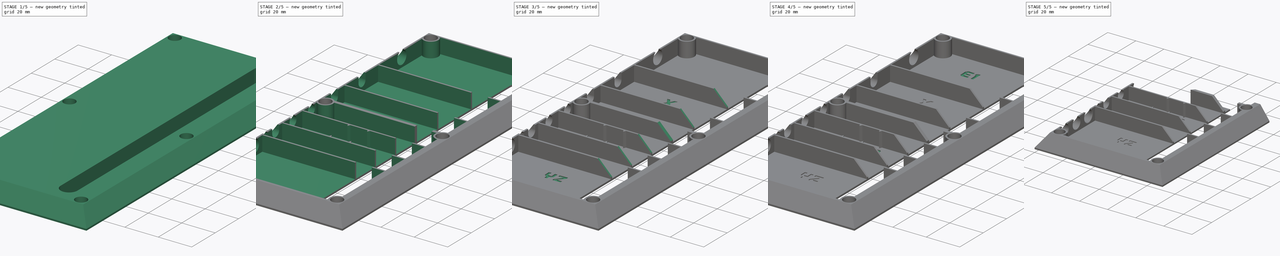
[diagram: build sequence overview — one tinted view per stage of 5, left to right]
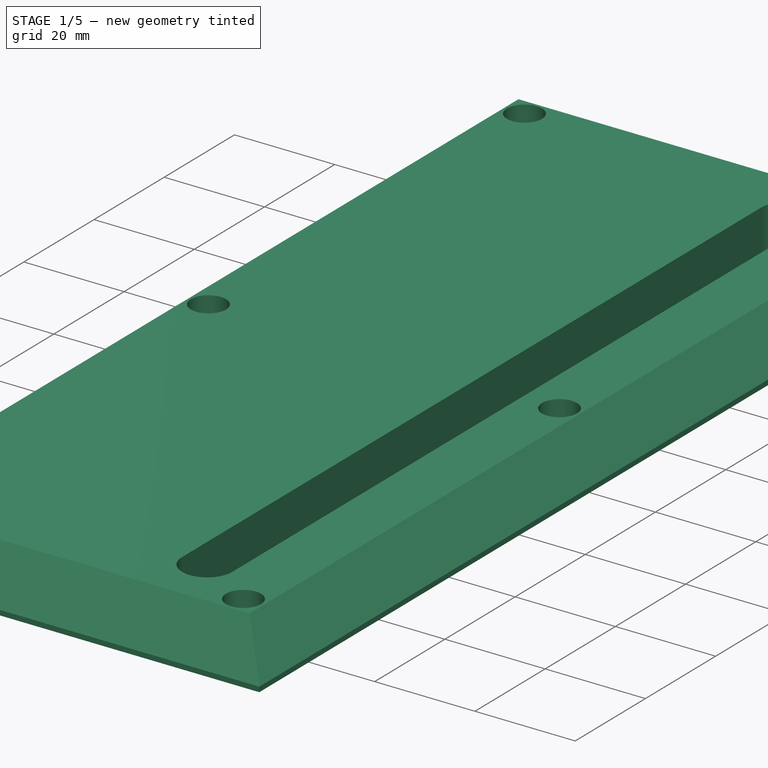
[diagram: stage 1 of 5 — iso view after this stage's code; geometry added in this stage tinted green]
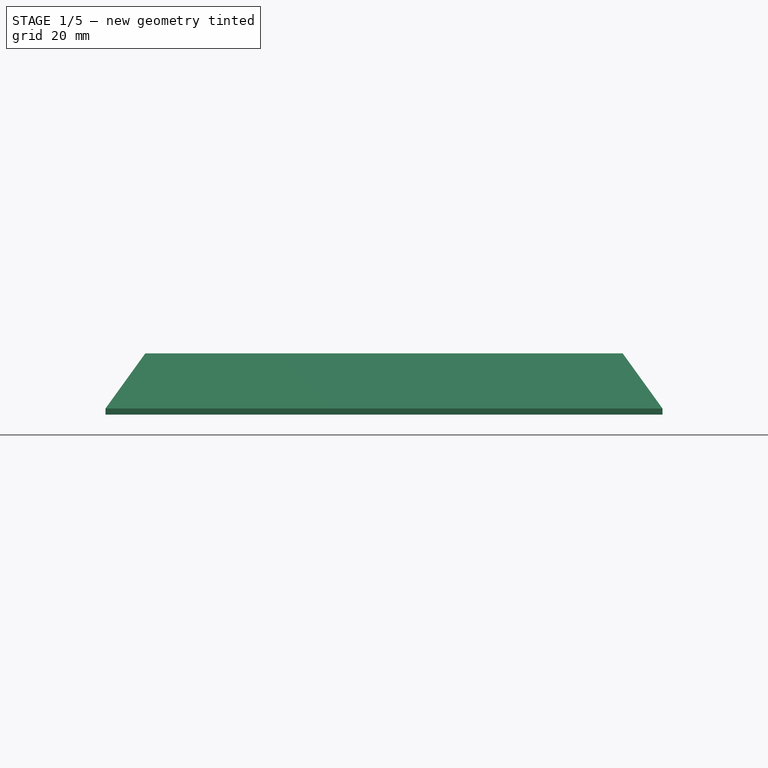
[diagram: stage 1 of 5 — front view after this stage's code; geometry added in this stage tinted green]
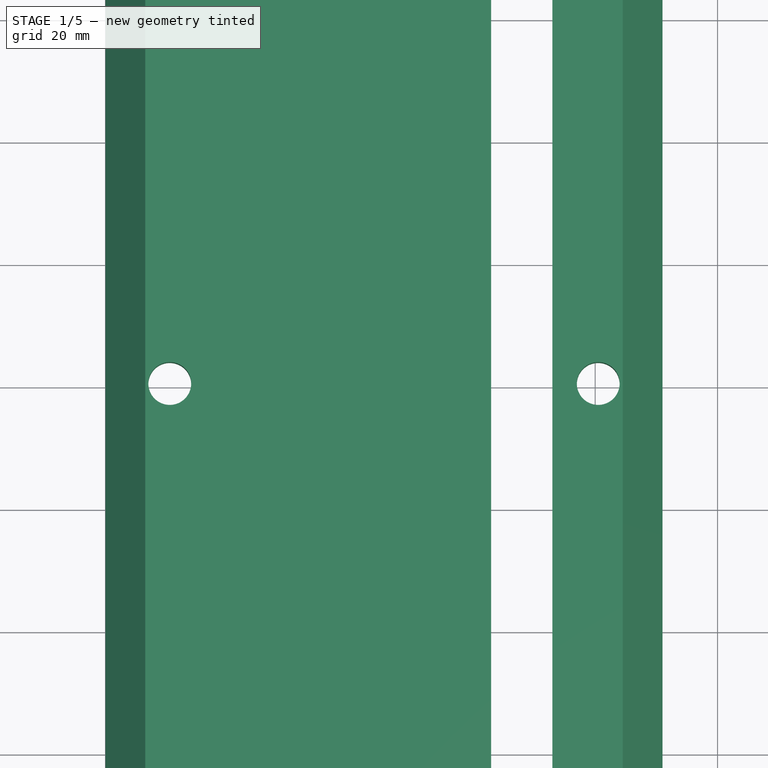
[diagram: stage 1 of 5 — top view after this stage's code; geometry added in this stage tinted green]
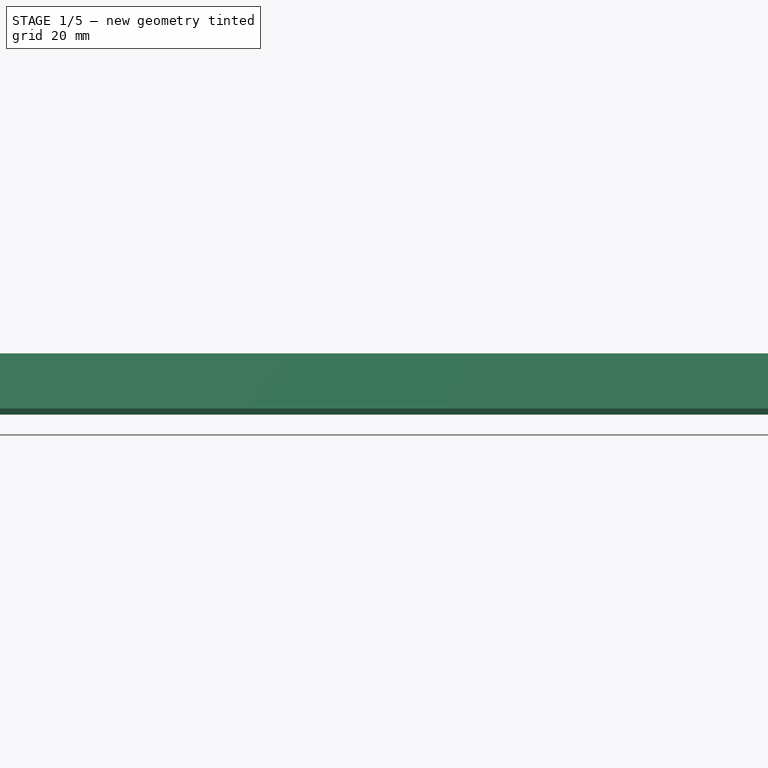
[diagram: stage 1 of 5 — right view after this stage's code; geometry added in this stage tinted green]
FCSTD DOCUMENT  (FreeCAD 0.17R13528 (Git))
Label: interconnect_housing_bottom_v0.1
License: CreativeCommons Attribution-ShareAlike
LicenseURL: http://creativecommons.org/licenses/by-sa/4.0/
objects: PartDesign::Pocket×12, Sketcher::SketchObject×9, Part::Part2DObjectPython×5, PartDesign::Pad×2, PartDesign::Fillet×1, PartDesign::Body×1
note: 44 computed .brp shape members not serialized (recipe doc carries the construction recipe); baked Part::Feature solids carry a one-line shape summary decoded from their .brp

FEATURE [Sketcher::SketchObject] Sketch
  MapMode = 5
  Support = -> [XY_Plane]
  sketch-geometry (21):
    g0: LineSegment StartX=0 StartY=201 StartZ=0 EndX=91 EndY=201 EndZ=0
    g1: LineSegment StartX=91 StartY=201 StartZ=0 EndX=91 EndY=0 EndZ=0
    g2: LineSegment StartX=91 StartY=0 StartZ=0 EndX=0 EndY=0 EndZ=0
    g3: LineSegment StartX=0 StartY=0 StartZ=0 EndX=0 EndY=201 EndZ=0
    g4: LineSegment [constr] StartX=63 StartY=18 StartZ=0 EndX=73 EndY=18 EndZ=0
    g5: LineSegment StartX=73 StartY=18 StartZ=0 EndX=73 EndY=183 EndZ=0
    g6: LineSegment [constr] StartX=73 StartY=183 StartZ=0 EndX=63 EndY=183 EndZ=0
    g7: LineSegment StartX=63 StartY=183 StartZ=0 EndX=63 EndY=18 EndZ=0
    g8: LineSegment [constr] StartX=10.5 StartY=190.5 StartZ=0 EndX=80.5 EndY=190.5 EndZ=0
    g9: LineSegment [constr] StartX=80.5 StartY=190.5 StartZ=0 EndX=80.5 EndY=10.5 EndZ=0
    g10: LineSegment [constr] StartX=80.5 StartY=10.5 StartZ=0 EndX=10.5 EndY=10.5 EndZ=0
    g11: LineSegment [constr] StartX=10.5 StartY=10.5 StartZ=0 EndX=10.5 EndY=190.5 EndZ=0
    g12: LineSegment [constr] StartX=10.5 StartY=100.5 StartZ=0 EndX=80.5 EndY=100.5 EndZ=0
    g13: ArcOfCircle CenterX=68 CenterY=183 CenterZ=0 NormalX=0 NormalY=0 NormalZ=1 AngleXU=0 Radius=5 StartAngle=-4e-12 EndAngle=3.14159
    g14: ArcOfCircle CenterX=68 CenterY=18 CenterZ=0 NormalX=0 NormalY=0 NormalZ=1 AngleXU=0 Radius=5 StartAngle=3.14159 EndAngle=6.28319
    g15: Circle CenterX=80.5 CenterY=10.5 CenterZ=0 NormalX=0 NormalY=0 NormalZ=1 AngleXU=0 Radius=3.5
    g16: Circle CenterX=10.5 CenterY=10.5 CenterZ=0 NormalX=0 NormalY=0 NormalZ=1 AngleXU=0 Radius=3.5
    g17: Circle CenterX=80.5 CenterY=100.5 CenterZ=0 NormalX=0 NormalY=0 NormalZ=1 AngleXU=0 Radius=3.5
    g18: Circle CenterX=10.5 CenterY=100.5 CenterZ=0 NormalX=0 NormalY=0 NormalZ=1 AngleXU=0 Radius=3.5
    g19: Circle CenterX=80.5 CenterY=190.5 CenterZ=0 NormalX=0 NormalY=0 NormalZ=1 AngleXU=0 Radius=3.5
    g20: Circle CenterX=10.5 CenterY=190.5 CenterZ=0 NormalX=0 NormalY=0 NormalZ=1 AngleXU=0 Radius=3.5
  constraints (53):
    c: Coincident(g0,g1)
    c: Coincident(g1,g2)
    c: Coincident(g2,g3)
    c: Coincident(g3,g0)
    c: Horizontal(g0)
    c: Horizontal(g2)
    c: Vertical(g1)
    c: Vertical(g3)
    c: Coincident(g2,g-1)
    c: DistanceX(g2,g2) = 91
    c: DistanceY(g1,g1) = 201
    c: Coincident(g4,g5)
    c: Coincident(g5,g6)
    c: Coincident(g6,g7)
    c: Coincident(g7,g4)
    c: Horizontal(g4)
    c: Horizontal(g6)
    c: Vertical(g5)
    c: Vertical(g7)
    c: Coincident(g8,g9)
    c: Coincident(g9,g10)
    c: Coincident(g10,g11)
    c: Coincident(g11,g8)
    c: Horizontal(g8)
    c: Horizontal(g10)
    c: Vertical(g9)
    c: Vertical(g11)
    c: DistanceX(g10) = 10.5
    c: DistanceY(g10) = 10.5
    c: DistanceX(g10,g10) = 70
    c: DistanceY(g9,g9) = 180
    c: PointOnObject(g12,g9)
    c: PointOnObject(g12,g11)
    c: Horizontal(g12)
    c: DistanceY(g12,g8) = 90
    c: DistanceX(g4) = 73
    c: DistanceY(g4) = 18
    c: DistanceX(g4,g4) = 10
    c: DistanceY(g5,g5) = 165
    c: Coincident(g4,g14)
    c: Coincident(g4,g14)
    c: PointOnObject(g14,g4)
    c: Coincident(g6,g13)
    c: Coincident(g5,g13)
    c: PointOnObject(g13,g6)
    c: Coincident(g8,g20)
    c: Coincident(g8,g19)
    c: Coincident(g12,g17)
    c: Coincident(g12,g18)
    c: Coincident(g10,g16)
    c: Coincident(g9,g15)
    c: Radius(g15) = 3.5
    c: Equal(g15, g16-g20) x5
FEATURE [PartDesign::Pad] Pad
  Length = 10
  Length2 = 100
  Profile = -> Sketch
  Type = 0
FEATURE [Sketcher::SketchObject] Sketch001
  MapMode = 5
  Placement = pos=(0,0,0) rot=(1,0,0;1.5708rad)
  Support = -> [Pad]
  sketch-geometry (6):
    g0: LineSegment StartX=84.5 StartY=10 StartZ=0 EndX=91 EndY=1 EndZ=0
    g1: LineSegment StartX=91 StartY=1 StartZ=0 EndX=91 EndY=10 EndZ=0
    g2: LineSegment StartX=91 StartY=10 StartZ=0 EndX=84.5 EndY=10 EndZ=0
    g3: LineSegment StartX=0 StartY=1 StartZ=0 EndX=6.5 EndY=10 EndZ=0
    g4: LineSegment StartX=6.5 StartY=10 StartZ=0 EndX=0 EndY=10 EndZ=0
    g5: LineSegment StartX=0 StartY=10 StartZ=0 EndX=0 EndY=1 EndZ=0
  constraints (18):
    c: Coincident(g0,g1)
    c: Coincident(g1,g2)
    c: Coincident(g2,g0)
    c: Coincident(g3,g4)
    c: Coincident(g4,g5)
    c: Coincident(g5,g3)
    c: Vertical(g5)
    c: Vertical(g1)
    c: Horizontal(g2)
    c: Horizontal(g4)
    c: PointOnObject(g4,g-2)
    c: DistanceY(g3) = 1
    c: Distance(g5) = 9
    c: DistanceX(g4,g4) = 6.5
    c: DistanceX(g0) = 91
    c: DistanceY(g0) = 1
    c: Equal(g1,g5)
    c: Equal(g4,g2)
FEATURE [Sketcher::SketchObject] Sketch002
  MapMode = 5
  Placement = pos=(91,0,0) rot=(0.57735,0.57735,0.57735;2.0944rad)
  Support = -> [Pad]
  sketch-geometry (6):
    g0: LineSegment StartX=0 StartY=1 StartZ=0 EndX=6.5 EndY=10 EndZ=0
    g1: LineSegment StartX=6.5 StartY=10 StartZ=0 EndX=0 EndY=10 EndZ=0
    g2: LineSegment StartX=0 StartY=10 StartZ=0 EndX=0 EndY=1 EndZ=0
    g3: LineSegment StartX=201 StartY=1 StartZ=0 EndX=194.5 EndY=10 EndZ=0
    g4: LineSegment StartX=194.5 StartY=10 StartZ=0 EndX=201 EndY=10 EndZ=0
    g5: LineSegment StartX=201 StartY=10 StartZ=0 EndX=201 EndY=1 EndZ=0
  constraints (18):
    c: Coincident(g0,g1)
    c: Coincident(g1,g2)
    c: Coincident(g2,g0)
    c: Coincident(g3,g4)
    c: Coincident(g4,g5)
    c: Coincident(g3,g5)
    c: Vertical(g5)
    c: Vertical(g2)
    c: Horizontal(g1)
    c: Horizontal(g4)
    c: PointOnObject(g0,g-2)
    c: DistanceY(g0) = 1
    c: DistanceY(g2,g2) = 9
    c: Equal(g1,g4)
    c: Equal(g5,g2)
    c: DistanceX(g3) = 201
    c: DistanceY(g3) = 1
    c: DistanceX(g4,g4) = 6.5
FEATURE [PartDesign::Pocket] Pocket
  BaseFeature = -> Pad
  Length = 5
  Length2 = 100
  Profile = -> Sketch002
  Type = 1
FEATURE [PartDesign::Pocket] Pocket001
  BaseFeature = -> Pocket
  Length = 5
  Length2 = 100
  Profile = -> Sketch001
  Type = 1
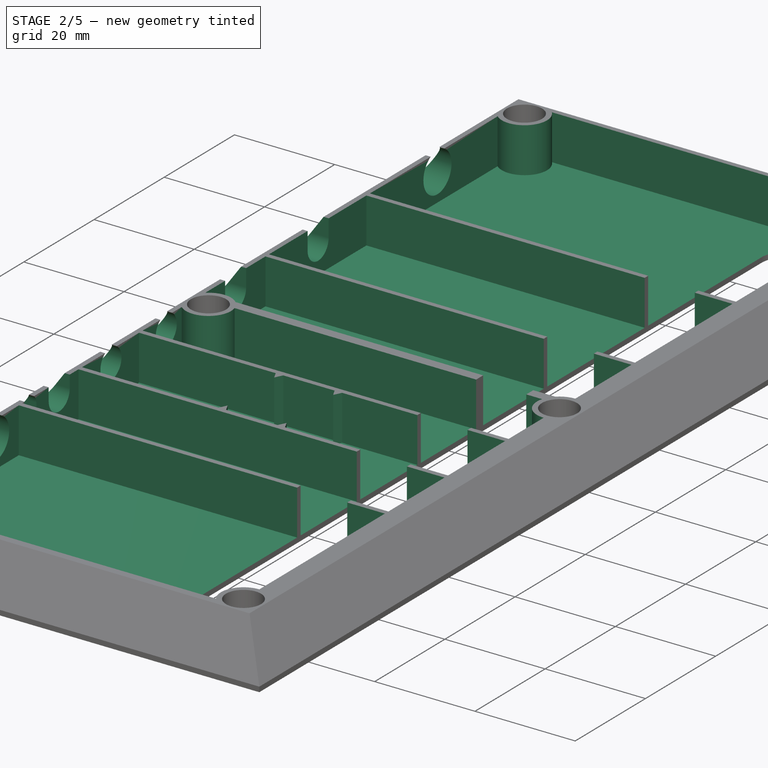
[diagram: stage 2 of 5 — iso view after this stage's code; geometry added in this stage tinted green]
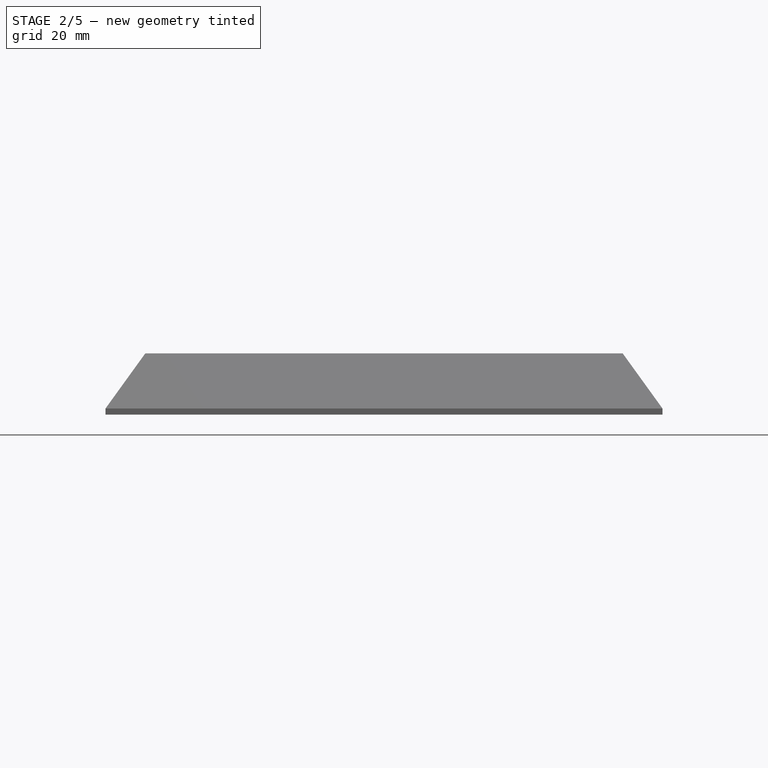
[diagram: stage 2 of 5 — front view after this stage's code; geometry added in this stage tinted green]
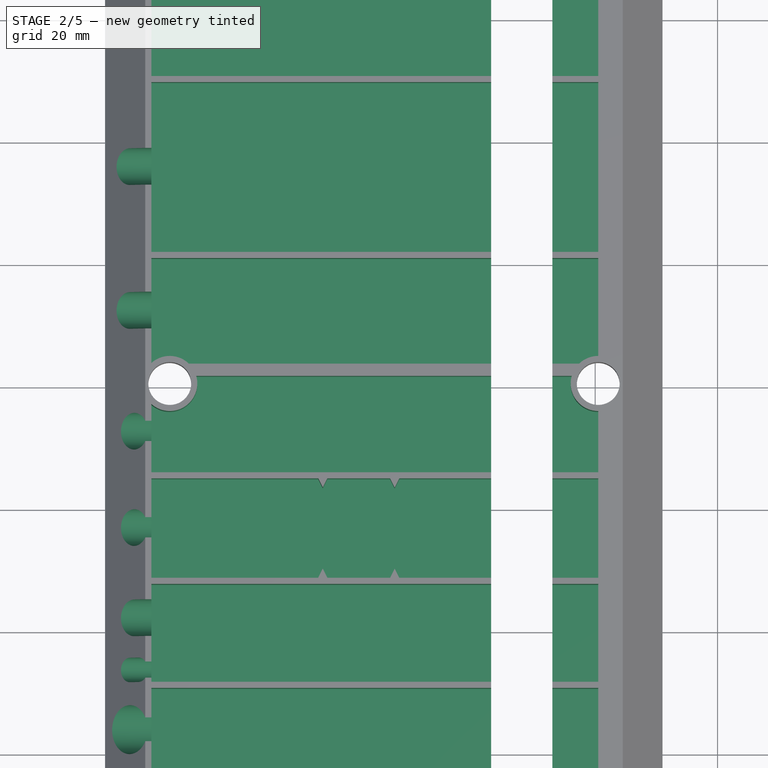
[diagram: stage 2 of 5 — top view after this stage's code; geometry added in this stage tinted green]
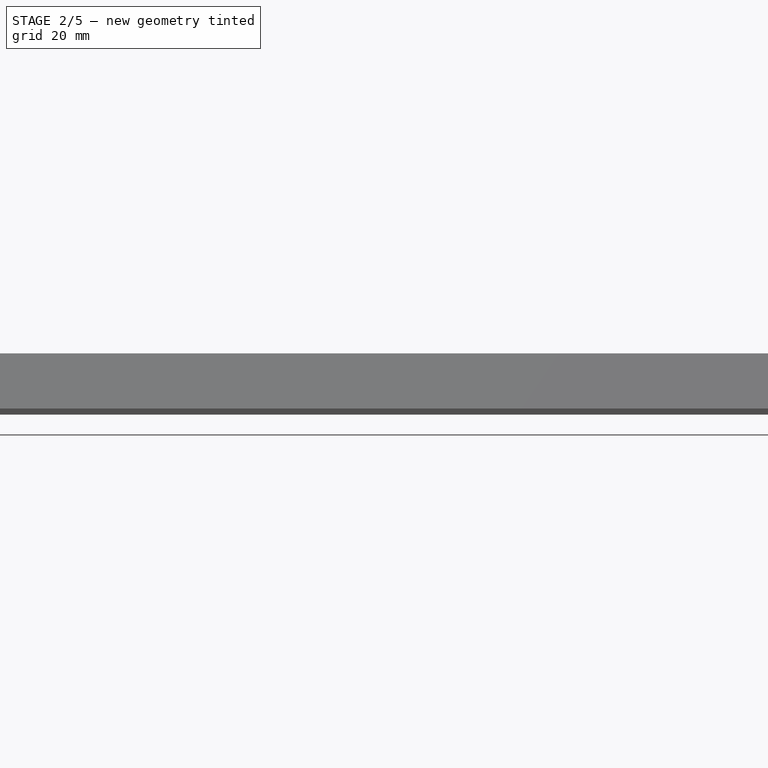
[diagram: stage 2 of 5 — right view after this stage's code; geometry added in this stage tinted green]
FEATURE [Sketcher::SketchObject] Sketch003
  MapMode = 5
  Placement = pos=(0,0,10) rot=(0,0,1;0rad)
  Support = -> [Pocket001]
  sketch-geometry (47):
    g0: LineSegment [constr] StartX=10.5 StartY=10.5 StartZ=0 EndX=80.5 EndY=10.5 EndZ=0
    g1: LineSegment [constr] StartX=80.5 StartY=10.5 StartZ=0 EndX=80.5 EndY=190.5 EndZ=0
    g2: LineSegment [constr] StartX=80.5 StartY=190.5 StartZ=0 EndX=10.5 EndY=190.5 EndZ=0
    g3: LineSegment [constr] StartX=10.5 StartY=190.5 StartZ=0 EndX=10.5 EndY=10.5 EndZ=0
    g4: Circle [constr] CenterX=10.5 CenterY=190.5 CenterZ=0 NormalX=0 NormalY=0 NormalZ=1 AngleXU=0 Radius=3.5
    g5: Circle [constr] CenterX=80.5 CenterY=190.5 CenterZ=0 NormalX=0 NormalY=0 NormalZ=1 AngleXU=0 Radius=3.5
    g6: Circle [constr] CenterX=80.5 CenterY=10.5 CenterZ=0 NormalX=0 NormalY=0 NormalZ=1 AngleXU=0 Radius=3.5
    g7: Circle [constr] CenterX=10.5 CenterY=10.5 CenterZ=0 NormalX=0 NormalY=0 NormalZ=1 AngleXU=0 Radius=3.5
    g8: Circle [constr] CenterX=10.5 CenterY=100.5 CenterZ=0 NormalX=0 NormalY=0 NormalZ=1 AngleXU=0 Radius=3.5
    g9: Circle [constr] CenterX=80.5 CenterY=100.5 CenterZ=0 NormalX=0 NormalY=0 NormalZ=1 AngleXU=0 Radius=3.5
    g10: LineSegment [constr] StartX=10.5 StartY=100.5 StartZ=0 EndX=80.5 EndY=100.5 EndZ=0
    g11: ArcOfCircle CenterX=10.5 CenterY=190.5 CenterZ=0 NormalX=0 NormalY=0 NormalZ=1 AngleXU=0 Radius=4.5 StartAngle=3.98266 EndAngle=7.01291
    g12: ArcOfCircle CenterX=80.5 CenterY=190.5 CenterZ=0 NormalX=0 NormalY=0 NormalZ=1 AngleXU=0 Radius=4.5 StartAngle=2.41186 EndAngle=4.71239
    g13: ArcOfCircle CenterX=10.5 CenterY=10.5 CenterZ=0 NormalX=0 NormalY=0 NormalZ=1 AngleXU=0 Radius=4.5 StartAngle=5.69415 EndAngle=8.58371
    g14: ArcOfCircle CenterX=80.5 CenterY=10.5 CenterZ=0 NormalX=0 NormalY=0 NormalZ=1 AngleXU=0 Radius=4.5 StartAngle=1.5708 EndAngle=3.73062
    g15: LineSegment StartX=7.5 StartY=50.75 StartZ=0 EndX=80.5 EndY=50.75 EndZ=0
    g16: LineSegment StartX=76.7583 StartY=8 StartZ=0 EndX=14.2417 EndY=8 EndZ=0
    g17: LineSegment StartX=7.5 StartY=50.75 StartZ=0 EndX=7.5 EndY=13.8541 EndZ=0
    g18: LineSegment StartX=80.5 StartY=50.75 StartZ=0 EndX=80.5 EndY=15 EndZ=0
    g19: LineSegment StartX=80.5 StartY=85 StartZ=0 EndX=7.5 EndY=85 EndZ=0
    g20: LineSegment StartX=7.5 StartY=85 StartZ=0 EndX=7.5 EndY=68.75 EndZ=0
    g21: LineSegment StartX=7.5 StartY=68.75 StartZ=0 EndX=80.5 EndY=68.75 EndZ=0
    g22: LineSegment StartX=80.5 StartY=68.75 StartZ=0 EndX=80.5 EndY=85 EndZ=0
    g23: LineSegment StartX=13.8541 StartY=193.5 StartZ=0 EndX=77.1459 EndY=193.5 EndZ=0
    g24: LineSegment StartX=80.5 StartY=186 StartZ=0 EndX=80.5 EndY=150.75 EndZ=0
    g25: LineSegment StartX=80.5 StartY=150.75 StartZ=0 EndX=7.5 EndY=150.75 EndZ=0
    g26: LineSegment StartX=7.5 StartY=187.146 StartZ=0 EndX=7.5 EndY=150.75 EndZ=0
    g27: LineSegment StartX=7.5 StartY=149.75 StartZ=0 EndX=80.5 EndY=149.75 EndZ=0
    g28: LineSegment StartX=80.5 StartY=149.75 StartZ=0 EndX=80.5 EndY=122 EndZ=0
    g29: LineSegment StartX=80.5 StartY=122 StartZ=0 EndX=7.5 EndY=122 EndZ=0
    g30: LineSegment StartX=7.5 StartY=122 StartZ=0 EndX=7.5 EndY=149.75 EndZ=0
    g31: LineSegment StartX=7.5 StartY=121 StartZ=0 EndX=80.5 EndY=121 EndZ=0
    g32: LineSegment StartX=77.3875 StartY=103.75 StartZ=0 EndX=13.6125 EndY=103.75 EndZ=0
    g33: LineSegment StartX=7.5 StartY=121 StartZ=0 EndX=7.5 EndY=103.854 EndZ=0
    g34: LineSegment StartX=80.5 StartY=121 StartZ=0 EndX=80.5 EndY=105 EndZ=0
    g35: LineSegment StartX=80.5 StartY=67.75 StartZ=0 EndX=80.5 EndY=51.75 EndZ=0
    g36: LineSegment StartX=80.5 StartY=51.75 StartZ=0 EndX=7.5 EndY=51.75 EndZ=0
    g37: LineSegment StartX=7.5 StartY=51.75 StartZ=0 EndX=7.5 EndY=67.75 EndZ=0
    g38: ArcOfCircle CenterX=10.5 CenterY=100.5 CenterZ=0 NormalX=0 NormalY=0 NormalZ=1 AngleXU=0 Radius=4.5 StartAngle=0.80701 EndAngle=2.30052
    g39: ArcOfCircle CenterX=80.5 CenterY=100.5 CenterZ=0 NormalX=0 NormalY=0 NormalZ=1 AngleXU=0 Radius=4.5 StartAngle=1.5708 EndAngle=2.33458
    g40: LineSegment StartX=7.5 StartY=86 StartZ=0 EndX=80.5 EndY=86 EndZ=0
    g41: LineSegment StartX=7.5 StartY=67.75 StartZ=0 EndX=80.5 EndY=67.75 EndZ=0
    g42: ArcOfCircle CenterX=10.5 CenterY=100.5 CenterZ=0 NormalX=0 NormalY=0 NormalZ=1 AngleXU=0 Radius=4.5 StartAngle=3.98266 EndAngle=6.56467
    g43: LineSegment StartX=14.8229 StartY=101.75 StartZ=0 EndX=76.1771 EndY=101.75 EndZ=0
    g44: LineSegment StartX=7.5 StartY=97.1459 StartZ=0 EndX=7.5 EndY=86 EndZ=0
    g45: ArcOfCircle CenterX=80.5 CenterY=100.5 CenterZ=0 NormalX=0 NormalY=0 NormalZ=1 AngleXU=0 Radius=4.5 StartAngle=2.86011 EndAngle=4.71239
    g46: LineSegment StartX=80.5 StartY=96 StartZ=0 EndX=80.5 EndY=86 EndZ=0
  constraints (136):
    c: Coincident(g0,g1)
    c: Coincident(g1,g2)
    c: Coincident(g2,g3)
    c: Coincident(g3,g0)
    c: Horizontal(g0)
    c: Horizontal(g2)
    c: Vertical(g1)
    c: Vertical(g3)
    c: DistanceX(g0) = 10.5
    c: DistanceY(g0) = 10.5
    c: DistanceY(g3,g3) = 180
    c: DistanceX(g2,g2) = 70
    c: Coincident(g0,g6)
    c: Coincident(g0,g7)
    c: Coincident(g2,g4)
    c: Coincident(g1,g5)
    c: Equal(g5,g4)
    c: Equal(g4,g8)
    c: Equal(g8,g9)
    c: Equal(g9,g7)
    c: Equal(g7,g6)
    c: Coincident(g9,g10)
    c: Coincident(g8,g10)
    c: Horizontal(g10)
    c: DistanceY(g8) = 100.5
    c: Radius(g8) = 3.5
    c: Coincident(g2,g11)
    c: Coincident(g1,g12)
    c: Coincident(g0,g14)
    c: Coincident(g0,g13)
    c: Horizontal(g15)
    c: Horizontal(g16)
    c: Coincident(g13,g16)
    c: PointOnObject(g15,g1)
    c: Coincident(g13,g17)
    c: Coincident(g15,g17)
    c: Vertical(g17)
    c: Radius(g13) = 4.5
    c: Coincident(g14,g16)
    c: Equal(g14,g13)
    c: Equal(g12,g11)
    c: Coincident(g14,g18)
    c: Coincident(g15,g18)
    c: Vertical(g18)
    c: DistanceX(g13) = 7.5
    c: Coincident(g19,g20)
    c: Coincident(g20,g21)
    c: Coincident(g21,g22)
    c: Coincident(g22,g19)
    c: Horizontal(g19)
    c: Horizontal(g21)
    c: Vertical(g20)
    c: Vertical(g22)
    c: DistanceY(g22,g22) = 16.25
    c: Coincident(g24,g25)
    c: Horizontal(g23)
    c: Horizontal(g25)
    c: Vertical(g24)
    c: Coincident(g25,g26)
    c: Coincident(g11,g26)
    c: Vertical(g26)
    c: DistanceY(g25,g11) = 42.75
    c: Coincident(g12,g24)
    c: Coincident(g11,g23)
    c: Coincident(g12,g23)
    c: PointOnObject(g12,g1)
    c: Coincident(g27,g28)
    c: Coincident(g28,g29)
    c: Coincident(g29,g30)
    c: Coincident(g30,g27)
    c: Horizontal(g27)
    c: Horizontal(g29)
    c: Vertical(g28)
    c: Vertical(g30)
    c: Horizontal(g31)
    c: Horizontal(g32)
    c: DistanceY(g30,g30) = 27.75
    c: DistanceY(g11) = 193.5
    c: DistanceY(g27,g25) = 1
    c: DistanceY(g13) = 8
    c: Vertical(g33)
    c: PointOnObject(g9,g1)
    c: PointOnObject(g28,g1)
    c: Coincident(g35,g36)
    c: Coincident(g36,g37)
    c: Horizontal(g36)
    c: Vertical(g35)
    c: Vertical(g37)
    c: Coincident(g31,g34)
    c: Vertical(g34)
    c: Coincident(g33,g31)
    c: PointOnObject(g35,g1)
    c: PointOnObject(g36,g17)
    c: DistanceY(g15,g36) = 1
    c: PointOnObject(g19,g1)
    c: PointOnObject(g31,g1)
    c: DistanceY(g31,g28) = 1
    c: DistanceY(g32,g31) = 17.25
    c: Coincident(g34,g39)
    c: Coincident(g9,g39)
    c: Coincident(g32,g39)
    c: Equal(g31,g19)
    c: Coincident(g32,g38)
    c: Coincident(g33,g38)
    c: Coincident(g8,g38)
    c: Equal(g38,g39)
    c: Equal(g39,g13)
    c: PointOnObject(g29,g33)
    c: PointOnObject(g25,g30)
    c: Equal(g11,g38)
    c: DistanceY(g13,g15) = 42.75
    c: Horizontal(g40)
    c: DistanceY(g40,g43) = 15.75
    c: Horizontal(g41)
    c: PointOnObject(g38,g3)
    c: Equal(g42,g38)
    c: Horizontal(g43)
    c: Coincident(g42,g43)
    c: Coincident(g8,g42)
    c: Coincident(g42,g44)
    c: Vertical(g44)
    c: Coincident(g44,g40)
    c: PointOnObject(g42,g33)
    c: DistanceY(g19,g40) = 1
    c: Coincident(g9,g45)
    c: Equal(g45,g39)
    c: PointOnObject(g40,g1)
    c: Coincident(g43,g45)
    c: Coincident(g45,g46)
    c: PointOnObject(g45,g1)
    c: Coincident(g40,g46)
    c: Coincident(g37,g41)
    c: DistanceY(g37,g37) = 16
    c: Coincident(g41,g35)
    c: DistanceY(g46,g46) = 10
    c: PointOnObject(g13,g44)
FEATURE [PartDesign::Pocket] Pocket002
  BaseFeature = -> Pocket001
  Length = 9
  Length2 = 100
  Profile = -> Sketch003
  Type = 0
FEATURE [Sketcher::SketchObject] Sketch004
  MapMode = 5
  Placement = pos=(7.5,0,0) rot=(0.57735,0.57735,0.57735;2.0944rad)
  Support = -> [Pocket002]
  sketch-geometry (29):
    g0: Circle CenterX=20 CenterY=6.5 CenterZ=0 NormalX=0 NormalY=0 NormalZ=1 AngleXU=0 Radius=4
    g1: Circle CenterX=32 CenterY=6.5 CenterZ=0 NormalX=0 NormalY=0 NormalZ=1 AngleXU=0 Radius=4
    g2: Circle CenterX=44 CenterY=6.5 CenterZ=0 NormalX=0 NormalY=0 NormalZ=1 AngleXU=0 Radius=4
    g3: LineSegment [constr] StartX=0 StartY=6.5 StartZ=0 EndX=170 EndY=6.5 EndZ=0
    g4: Circle [constr] CenterX=112.5 CenterY=6.5 CenterZ=0 NormalX=0 NormalY=0 NormalZ=1 AngleXU=0 Radius=3
    g5: Circle CenterX=77 CenterY=7.5 CenterZ=0 NormalX=0 NormalY=0 NormalZ=1 AngleXU=0 Radius=3
    g6: ArcOfCircle CenterX=53.75 CenterY=6.5 CenterZ=0 NormalX=0 NormalY=0 NormalZ=1 AngleXU=0 Radius=2 StartAngle=3.14159 EndAngle=6.28319
    g7: ArcOfCircle CenterX=53.75 CenterY=8.5 CenterZ=0 NormalX=0 NormalY=0 NormalZ=1 AngleXU=0 Radius=2 StartAngle=0 EndAngle=3.14159
    g8: LineSegment StartX=55.75 StartY=6.5 StartZ=0 EndX=55.75 EndY=8.5 EndZ=0
    g9: LineSegment StartX=51.75 StartY=6.5 StartZ=0 EndX=51.75 EndY=8.5 EndZ=0
    g10: Circle [constr] CenterX=136 CenterY=6.5 CenterZ=0 NormalX=0 NormalY=0 NormalZ=1 AngleXU=0 Radius=3
    g11: Circle [constr] CenterX=62.25 CenterY=7.5 CenterZ=0 NormalX=0 NormalY=0 NormalZ=1 AngleXU=0 Radius=3
    g12: Circle CenterX=170 CenterY=6.5 CenterZ=0 NormalX=0 NormalY=0 NormalZ=1 AngleXU=0 Radius=4
    g13: LineSegment [constr] StartX=170 StartY=7.5 StartZ=0 EndX=62.25 EndY=7.5 EndZ=0
    g14: ArcOfCircle CenterX=112.5 CenterY=6.5 CenterZ=0 NormalX=0 NormalY=0 NormalZ=1 AngleXU=0 Radius=3 StartAngle=3.14159 EndAngle=6.28319
    g15: ArcOfCircle CenterX=136 CenterY=6.5 CenterZ=0 NormalX=0 NormalY=0 NormalZ=1 AngleXU=0 Radius=3 StartAngle=3.14159 EndAngle=6.28319
    g16: LineSegment [constr] StartX=109.5 StartY=6.5 StartZ=0 EndX=115.5 EndY=6.5 EndZ=0
    g17: LineSegment StartX=115.5 StartY=6.5 StartZ=0 EndX=115.5 EndY=10 EndZ=0
    g18: LineSegment StartX=115.5 StartY=10 StartZ=0 EndX=109.5 EndY=10 EndZ=0
    g19: LineSegment StartX=109.5 StartY=10 StartZ=0 EndX=109.5 EndY=6.5 EndZ=0
    g20: LineSegment [constr] StartX=133 StartY=6.5 StartZ=0 EndX=139 EndY=6.5 EndZ=0
    g21: LineSegment StartX=139 StartY=6.5 StartZ=0 EndX=139 EndY=10 EndZ=0
    g22: LineSegment StartX=139 StartY=10 StartZ=0 EndX=133 EndY=10 EndZ=0
    g23: LineSegment StartX=133 StartY=10 StartZ=0 EndX=133 EndY=6.5 EndZ=0
    g24: ArcOfCircle CenterX=62.25 CenterY=7.5 CenterZ=0 NormalX=0 NormalY=0 NormalZ=1 AngleXU=0 Radius=3 StartAngle=3.14159 EndAngle=6.28319
    g25: ArcOfCircle CenterX=62.25 CenterY=10 CenterZ=0 NormalX=0 NormalY=0 NormalZ=1 AngleXU=0 Radius=3 StartAngle=0 EndAngle=3.14159
    g26: LineSegment StartX=65.25 StartY=7.5 StartZ=0 EndX=65.25 EndY=10 EndZ=0
    g27: LineSegment StartX=59.25 StartY=7.5 StartZ=0 EndX=59.25 EndY=10 EndZ=0
    g28: Circle CenterX=92.75 CenterY=7.5 CenterZ=0 NormalX=0 NormalY=0 NormalZ=1 AngleXU=0 Radius=3
  constraints (80):
    c: Horizontal(g3)
    c: PointOnObject(g3,g-2)
    c: DistanceY(g3) = 6.5
    c: PointOnObject(g0,g3)
    c: PointOnObject(g1,g3)
    c: PointOnObject(g2,g3)
    c: DistanceX(g0) = 20
    c: Radius(g0) = 4
    c: DistanceX(g0,g1) = 12
    c: Equal(g1,g0)
    c: Equal(g0,g2)
    c: DistanceX(g1,g2) = 12
    c: Tangent(g6,g9) = 1.5708
    c: Tangent(g6,g8) = -1.5708
    c: Tangent(g8,g7) = -1.5708
    c: Tangent(g9,g7) = 1.5708
    c: Vertical(g8)
    c: Equal(g6,g7)
    c: PointOnObject(g6,g3)
    c: DistanceX(g6) = 53.75
    c: DistanceX(g6,g6) = 4
    c: DistanceY(g8,g8) = 2
    c: DistanceX(g5) = 77
    c: Equal(g4,g5)
    c: DistanceX(g4) = 112.5
    c: DistanceX(g3,g3) = 170
    c: Equal(g4,g10)
    c: DistanceX(g10) = 136
    c: DistanceX(g11) = 62.25
    c: Radius(g10) = 3
    c: Coincident(g11,g13)
    c: Horizontal(g13)
    c: PointOnObject(g5,g13)
    c: Radius(g12) = 4
    c: PointOnObject(g4,g3)
    c: PointOnObject(g10,g3)
    c: Coincident(g3,g12)
    c: DistanceY(g3,g13) = 1
    c: Coincident(g14,g4)
    c: Coincident(g15,g10)
    c: Coincident(g16,g17)
    c: Coincident(g17,g18)
    c: Coincident(g18,g19)
    c: Coincident(g19,g16)
    c: Horizontal(g16)
    c: Horizontal(g18)
    c: Vertical(g17)
    c: Vertical(g19)
    c: Coincident(g16,g14)
    c: Coincident(g20,g21)
    c: Coincident(g21,g22)
    c: Coincident(g22,g23)
    c: Coincident(g23,g20)
    c: Horizontal(g20)
    c: Horizontal(g22)
    c: Vertical(g21)
    c: Vertical(g23)
    c: Coincident(g20,g15)
    c: Coincident(g15,g20)
    c: Coincident(g14,g16)
    c: Equal(g14,g15)
    c: Equal(g15,g10)
    c: Tangent(g23,g15)
    c: Tangent(g17,g14)
    c: Equal(g17,g23)
    c: DistanceY(g23,g23) = 3.5
    c: Radius(g11) = 3
    c: Tangent(g24,g27) = 1.5708
    c: Tangent(g24,g26) = -1.5708
    c: Tangent(g26,g25) = -1.5708
    c: Tangent(g27,g25) = 1.5708
    c: Vertical(g26)
    c: Equal(g24,g25)
    c: Coincident(g24,g11)
    c: Equal(g25,g11)
    c: DistanceY(g26,g26) = 2.5
    c: DistanceX(g13,g13) = 107.75
    c: PointOnObject(g28,g13)
    c: DistanceX(g28) = 92.75
    c: Equal(g28,g5)
FEATURE [Part::Part2DObjectPython] ShapeString  # Draft 2D object (typed FeaturePython)
  FontFile = <userpath>/Desktop/Outage Cut.ttf
  Placement = pos=(30.227,175.263,1) rot=(0,0,1;0rad)
  Size = 3
  String = E1
  Tracking = 0
FEATURE [Part::Part2DObjectPython] ShapeString001  # Draft 2D object (typed FeaturePython)
  FontFile = <userpath>/Desktop/Outage Cut.ttf
  Placement = pos=(38.9877,142.97,1) rot=(0,0,1;3.14159rad)
  Size = 3
  String = X
  Tracking = 0
FEATURE [Part::Part2DObjectPython] ShapeString002  # Draft 2D object (typed FeaturePython)
  FontFile = <userpath>/Desktop/Outage Cut.ttf
  Placement = pos=(26.3344,110.223,1) rot=(0,0,1;0rad)
  Size = 3
  String = BED
  Tracking = 0
FEATURE [Part::Part2DObjectPython] ShapeString003  # Draft 2D object (typed FeaturePython)
  FontFile = <userpath>/Desktop/Outage Cut.ttf
  Placement = pos=(29.7127,75.4356,1) rot=(0,0,1;0rad)
  Size = 3
  String = PWR
  Tracking = 0
FEATURE [Part::Part2DObjectPython] ShapeString004  # Draft 2D object (typed FeaturePython)
  FontFile = <userpath>/Desktop/Outage Cut.ttf
  Placement = pos=(32.8165,33.5583,1) rot=(0,0,1;0rad)
  Size = 3
  String = YZ
  Tracking = 0
FEATURE [Sketcher::SketchObject] Sketch007
  MapMode = 5
  Placement = pos=(0,0,0) rot=(1,0,0;3.14159rad)
  sketch-geometry (16):
    g0: LineSegment StartX=0.5 StartY=-10.45 StartZ=0 EndX=77 EndY=-10.45 EndZ=0
    g1: LineSegment StartX=77 StartY=-10.45 StartZ=0 EndX=77 EndY=-10.55 EndZ=0
    g2: LineSegment StartX=77 StartY=-10.55 StartZ=0 EndX=0.5 EndY=-10.55 EndZ=0
    g3: LineSegment StartX=0.5 StartY=-10.55 StartZ=0 EndX=0.5 EndY=-10.45 EndZ=0
    g4: LineSegment StartX=0.5 StartY=-100.45 StartZ=0 EndX=77 EndY=-100.45 EndZ=0
    g5: LineSegment StartX=77 StartY=-100.45 StartZ=0 EndX=77 EndY=-100.55 EndZ=0
    g6: LineSegment StartX=77 StartY=-100.55 StartZ=0 EndX=0.5 EndY=-100.55 EndZ=0
    g7: LineSegment StartX=0.5 StartY=-100.55 StartZ=0 EndX=0.5 EndY=-100.45 EndZ=0
    g8: LineSegment StartX=0.5 StartY=-190.45 StartZ=0 EndX=77 EndY=-190.45 EndZ=0
    g9: LineSegment StartX=77 StartY=-190.45 StartZ=0 EndX=77 EndY=-190.55 EndZ=0
    g10: LineSegment StartX=77 StartY=-190.55 StartZ=0 EndX=0.5 EndY=-190.55 EndZ=0
    g11: LineSegment StartX=0.5 StartY=-190.55 StartZ=0 EndX=0.5 EndY=-190.45 EndZ=0
    g12: LineSegment [constr] StartX=0.5 StartY=-10.55 StartZ=0 EndX=77 EndY=-10.55 EndZ=0
    g13: LineSegment [constr] StartX=77 StartY=-10.55 StartZ=0 EndX=77 EndY=-190.45 EndZ=0
    g14: LineSegment [constr] StartX=77 StartY=-190.45 StartZ=0 EndX=0.5 EndY=-190.45 EndZ=0
    g15: LineSegment [constr] StartX=0.5 StartY=-190.45 StartZ=0 EndX=0.5 EndY=-10.55 EndZ=0
  constraints (46):
    c: Coincident(g0,g1)
    c: Coincident(g1,g2)
    c: Coincident(g2,g3)
    c: Coincident(g3,g0)
    c: Horizontal(g0)
    c: Horizontal(g2)
    c: Vertical(g1)
    c: Vertical(g3)
    c: Coincident(g4,g5)
    c: Coincident(g5,g6)
    c: Coincident(g6,g7)
    c: Coincident(g7,g4)
    c: Horizontal(g4)
    c: Horizontal(g6)
    c: Vertical(g5)
    c: Vertical(g7)
    c: Coincident(g8,g9)
    c: Coincident(g9,g10)
    c: Coincident(g10,g11)
    c: Coincident(g11,g8)
    c: Horizontal(g8)
    c: Horizontal(g10)
    c: Vertical(g9)
    c: Vertical(g11)
    c: DistanceY(g9,g9) = 0.1
    c: DistanceX(g10) = 0.5
    c: DistanceY(g5,g5) = 0.1
    c: Equal(g4,g10)
    c: DistanceY(g1,g1) = 0.1
    c: Equal(g0,g4)
    c: Coincident(g12,g13)
    c: Coincident(g13,g14)
    c: Coincident(g14,g15)
    c: Coincident(g15,g12)
    c: Horizontal(g12)
    c: Horizontal(g14)
    c: Vertical(g13)
    c: Vertical(g15)
    c: Coincident(g8,g13)
    c: Coincident(g2,g12)
    c: PointOnObject(g4,g15)
    c: PointOnObject(g5,g13)
    c: DistanceY(g0) = -10.45
    c: DistanceY(g6,g2) = 90
    c: DistanceY(g8,g4) = 90
    c: DistanceX(g8,g8) = 76.5
FEATURE [PartDesign::Pocket] Pocket003
  BaseFeature = -> Pocket002
  Length = 5
  Length2 = 100
  Profile = -> Sketch004
  Refine = true
  Type = 1
FEATURE [Sketcher::SketchObject] Sketch005
  MapMode = 5
  Placement = pos=(0,0,10) rot=(0,0,1;0rad)
  Support = -> [Pocket003]
  sketch-geometry (16):
    g0: LineSegment [constr] StartX=34.75 StartY=85 StartZ=0 EndX=48 EndY=85 EndZ=0
    g1: LineSegment [constr] StartX=48 StartY=85 StartZ=0 EndX=48 EndY=68.75 EndZ=0
    g2: LineSegment [constr] StartX=48 StartY=68.75 StartZ=0 EndX=34.75 EndY=68.75 EndZ=0
    g3: LineSegment [constr] StartX=34.75 StartY=68.75 StartZ=0 EndX=34.75 EndY=85 EndZ=0
    g4: LineSegment StartX=48 StartY=85 StartZ=0 EndX=47.25 EndY=83.5 EndZ=0
    g5: LineSegment StartX=47.25 StartY=83.5 StartZ=0 EndX=46.5 EndY=85 EndZ=0
    g6: LineSegment StartX=46.5 StartY=85 StartZ=0 EndX=48 EndY=85 EndZ=0
    g7: LineSegment StartX=34.75 StartY=68.75 StartZ=0 EndX=35.5 EndY=70.25 EndZ=0
    g8: LineSegment StartX=35.5 StartY=70.25 StartZ=0 EndX=36.25 EndY=68.75 EndZ=0
    g9: LineSegment StartX=36.25 StartY=68.75 StartZ=0 EndX=34.75 EndY=68.75 EndZ=0
    g10: LineSegment StartX=46.5 StartY=68.75 StartZ=0 EndX=47.25 EndY=70.25 EndZ=0
    g11: LineSegment StartX=47.25 StartY=70.25 StartZ=0 EndX=48 EndY=68.75 EndZ=0
    g12: LineSegment StartX=48 StartY=68.75 StartZ=0 EndX=46.5 EndY=68.75 EndZ=0
    g13: LineSegment StartX=34.75 StartY=85 StartZ=0 EndX=36.25 EndY=85 EndZ=0
    g14: LineSegment StartX=36.25 StartY=85 StartZ=0 EndX=35.5 EndY=83.5 EndZ=0
    g15: LineSegment StartX=35.5 StartY=83.5 StartZ=0 EndX=34.75 EndY=85 EndZ=0
  constraints (44):
    c: Coincident(g0,g1)
    c: Coincident(g1,g2)
    c: Coincident(g2,g3)
    c: Coincident(g3,g0)
    c: Horizontal(g0)
    c: Horizontal(g2)
    c: Vertical(g1)
    c: Vertical(g3)
    c: DistanceX(g0,g0) = 13.25
    c: DistanceY(g1,g1) = 16.25
    c: Coincident(g4,g5)
    c: Coincident(g5,g6)
    c: Coincident(g0,g4)
    c: Coincident(g0,g6)
    c: Horizontal(g6)
    c: Equal(g4,g5)
    c: DistanceY(g4,g4) = 1.5
    c: Coincident(g7,g8)
    c: Coincident(g8,g9)
    c: Coincident(g10,g11)
    c: Coincident(g11,g12)
    c: Coincident(g13,g14)
    c: Coincident(g14,g15)
    c: Coincident(g0,g13)
    c: Coincident(g0,g15)
    c: Coincident(g2,g7)
    c: Coincident(g2,g9)
    c: Coincident(g10,g12)
    c: Coincident(g1,g11)
    c: Horizontal(g12)
    c: Horizontal(g9)
    c: Horizontal(g13)
    c: Equal(g11,g10)
    c: Equal(g10,g8)
    c: Equal(g8,g7)
    c: Equal(g7,g15)
    c: Equal(g15,g14)
    c: Equal(g14,g5)
    c: Equal(g13,g6)
    c: Equal(g6,g12)
    c: Equal(g12,g9)
    c: DistanceX(g9,g9) = 1.5
    c: DistanceX(g0) = 34.75
    c: DistanceY(g2) = 68.75
FEATURE [PartDesign::Pad] Pad001
  BaseFeature = -> Pocket003
  Length = 10
  Length2 = 100
  Profile = -> Sketch005
  Refine = true
  Reversed = true
  Type = 0
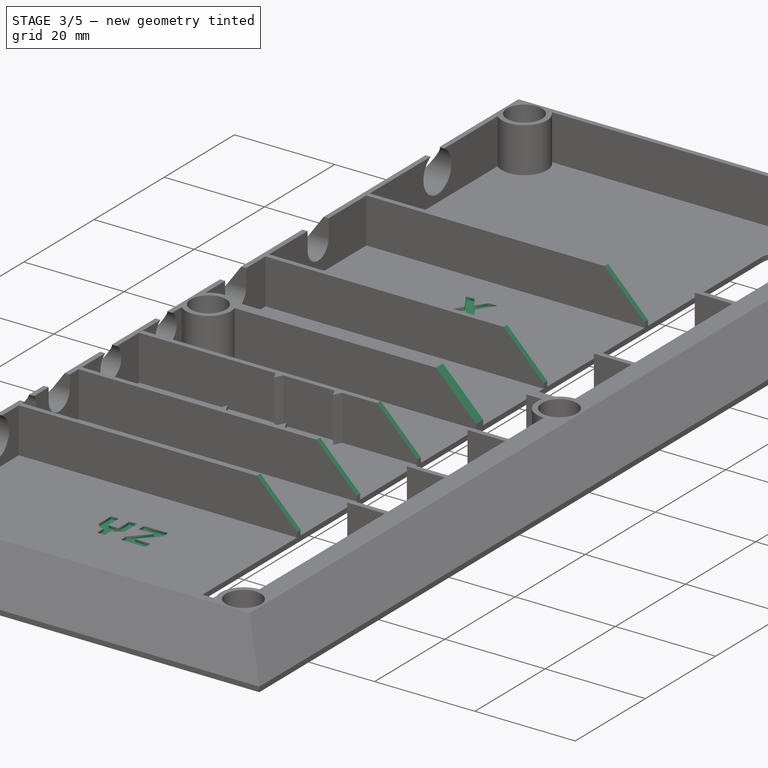
[diagram: stage 3 of 5 — iso view after this stage's code; geometry added in this stage tinted green]
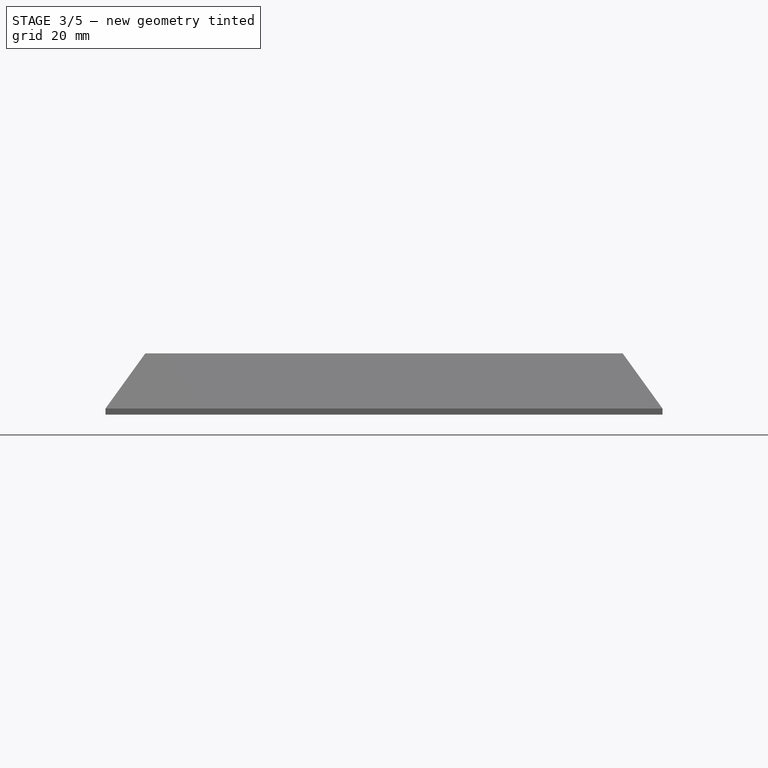
[diagram: stage 3 of 5 — front view after this stage's code; geometry added in this stage tinted green]
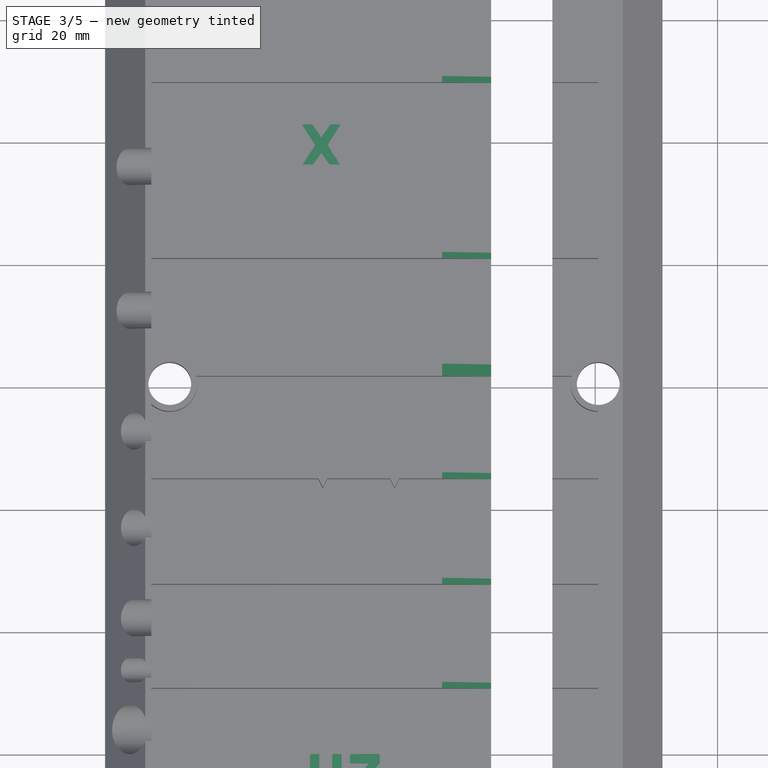
[diagram: stage 3 of 5 — top view after this stage's code; geometry added in this stage tinted green]
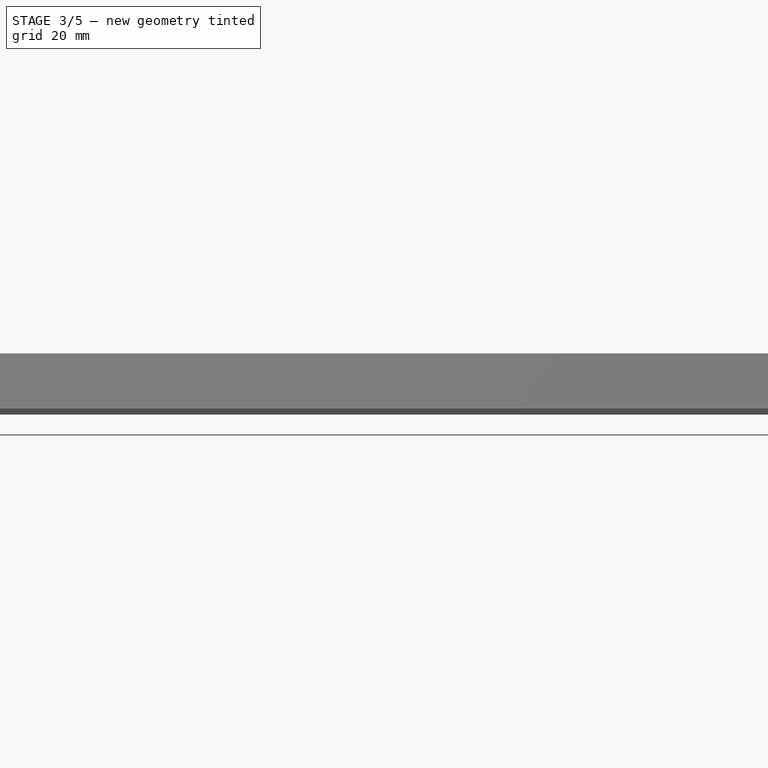
[diagram: stage 3 of 5 — right view after this stage's code; geometry added in this stage tinted green]
FEATURE [Sketcher::SketchObject] Sketch006
  MapMode = 5
  Placement = pos=(0,50.75,0) rot=(1,0,0;1.5708rad)
  Support = -> [Pad001]
  sketch-geometry (6):
    g0: LineSegment StartX=55 StartY=10 StartZ=0 EndX=63 EndY=2 EndZ=0
    g1: LineSegment StartX=63 StartY=2 StartZ=0 EndX=63 EndY=10 EndZ=0
    g2: LineSegment StartX=63 StartY=10 StartZ=0 EndX=55 EndY=10 EndZ=0
    g3: LineSegment StartX=73 StartY=10 StartZ=0 EndX=76 EndY=10 EndZ=0
    g4: LineSegment StartX=76 StartY=10 StartZ=0 EndX=73 EndY=7 EndZ=0
    g5: LineSegment StartX=73 StartY=7 StartZ=0 EndX=73 EndY=10 EndZ=0
  constraints (18):
    c: Coincident(g0,g1)
    c: Coincident(g1,g2)
    c: Coincident(g3,g4)
    c: Coincident(g4,g5)
    c: Coincident(g3,g5)
    c: Coincident(g0,g2)
    c: Horizontal(g2)
    c: Horizontal(g3)
    c: Vertical(g5)
    c: Vertical(g1)
    c: DistanceX(g1) = 63
    c: DistanceY(g1) = 10
    c: Equal(g2,g1)
    c: DistanceY(g1,g1) = 8
    c: PointOnObject(g3,g2)
    c: DistanceX(g1,g3) = 10
    c: Equal(g5,g3)
    c: DistanceX(g3,g3) = 3
FEATURE [PartDesign::Pocket] Pocket004
  BaseFeature = -> Pad001
  Length = 0
  Length2 = 100
  Profile = -> Sketch006
  Refine = true
  Type = 3
  UpToFace = -> Pad001 [Face59]
FEATURE [Sketcher::SketchObject] Sketch009
  MapMode = 5
  Placement = pos=(0,0,10) rot=(0,0,1;0rad)
  sketch-geometry (6):
    g0: LineSegment StartX=0 StartY=92.5 StartZ=0 EndX=30.5 EndY=92.5 EndZ=0
    g1: LineSegment StartX=30.5 StartY=92.5 StartZ=0 EndX=46.75 EndY=108.75 EndZ=0
    g2: LineSegment StartX=46.75 StartY=108.75 StartZ=0 EndX=91.25 EndY=108.75 EndZ=0
    g3: LineSegment StartX=0 StartY=92.5 StartZ=0 EndX=0 EndY=204.5 EndZ=0
    g4: LineSegment StartX=0 StartY=204.5 StartZ=0 EndX=91.25 EndY=204.5 EndZ=0
    g5: LineSegment StartX=91.25 StartY=204.5 StartZ=0 EndX=91.25 EndY=108.75 EndZ=0
  constraints (18):
    c: PointOnObject(g0,g-2)
    c: Horizontal(g0)
    c: Coincident(g0,g1)
    c: Coincident(g1,g2)
    c: Horizontal(g2)
    c: DistanceY(g0) = 92.5
    c: DistanceY(g2) = 108.75
    c: DistanceX(g2,g2) = 44.5
    c: DistanceX(g0,g0) = 30.5
    c: Angle(g1) = 0.785398
    c: Coincident(g0,g3)
    c: Vertical(g3)
    c: Coincident(g3,g4)
    c: Horizontal(g4)
    c: Coincident(g4,g5)
    c: Coincident(g5,g2)
    c: Vertical(g5)
    c: DistanceY(g3,g3) = 112
FEATURE [PartDesign::Pocket] Pocket005
  BaseFeature = -> Pocket004
  Length = 0.5
  Length2 = 100
  Profile = -> ShapeString001
  Refine = true
  Type = 0
FEATURE [PartDesign::Pocket] Pocket006
  BaseFeature = -> Pocket005
  Length = 0.5
  Length2 = 100
  Profile = -> ShapeString004
  Refine = true
  Type = 0
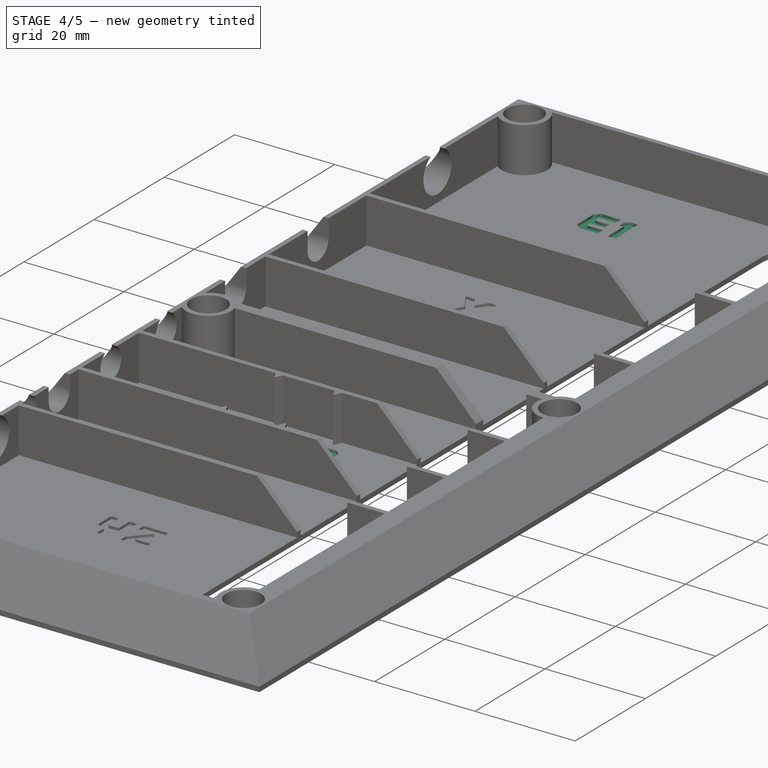
[diagram: stage 4 of 5 — iso view after this stage's code; geometry added in this stage tinted green]
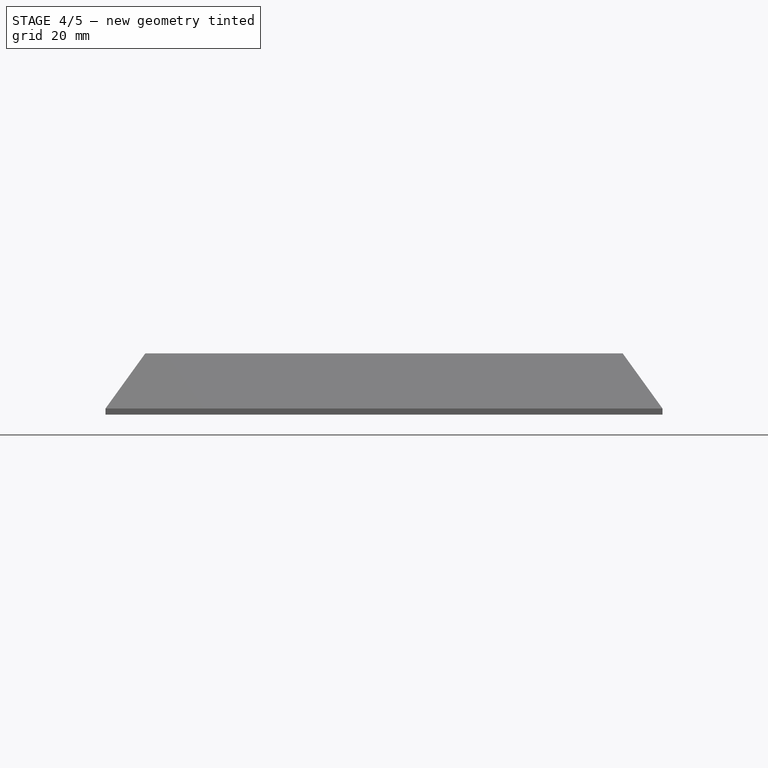
[diagram: stage 4 of 5 — front view after this stage's code; geometry added in this stage tinted green]
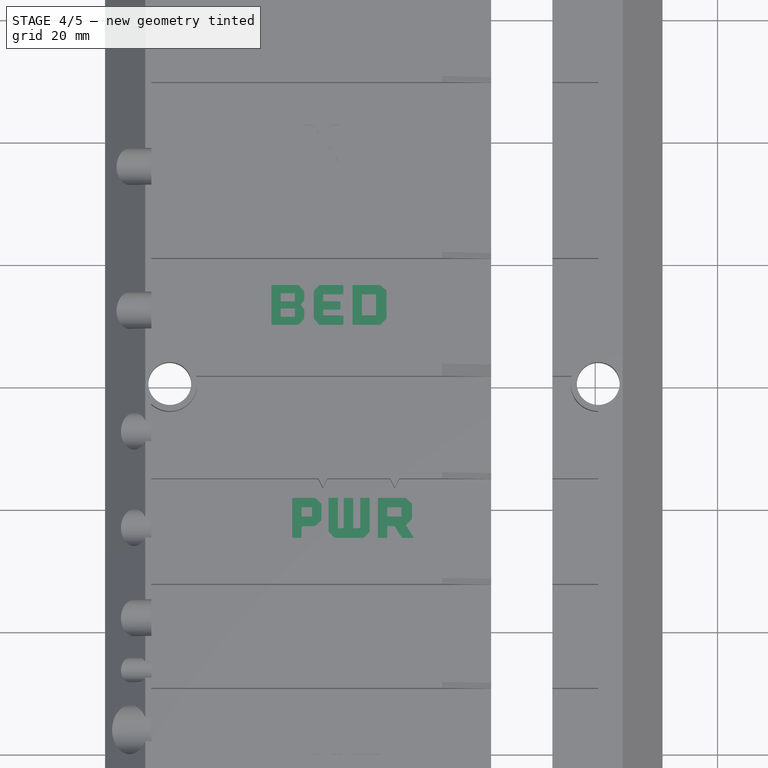
[diagram: stage 4 of 5 — top view after this stage's code; geometry added in this stage tinted green]
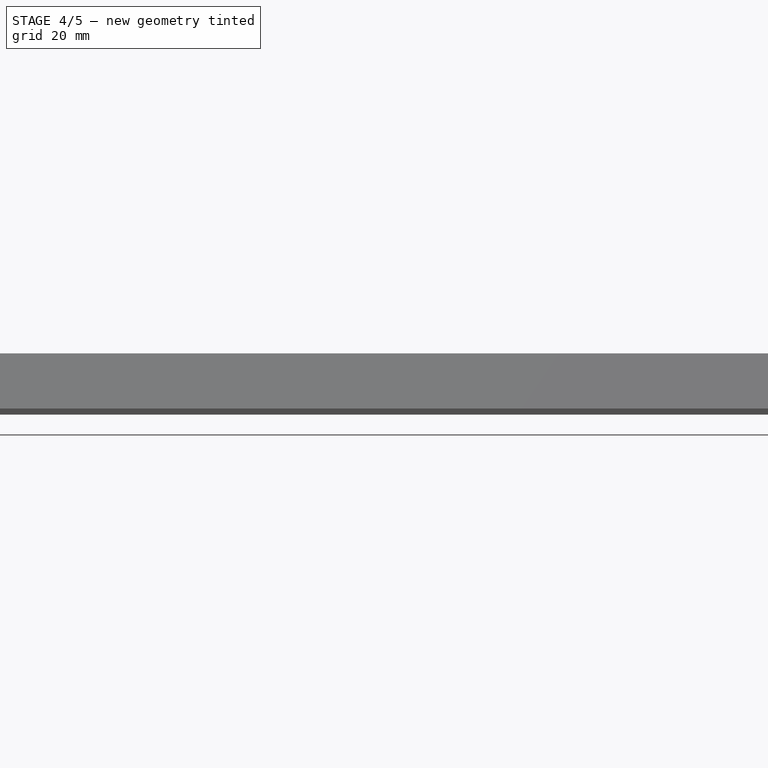
[diagram: stage 4 of 5 — right view after this stage's code; geometry added in this stage tinted green]
FEATURE [PartDesign::Pocket] Pocket007
  BaseFeature = -> Pocket006
  Length = 0.5
  Length2 = 100
  Profile = -> ShapeString002
  Refine = true
  Type = 0
FEATURE [PartDesign::Pocket] Pocket008
  BaseFeature = -> Pocket007
  Length = 0.5
  Length2 = 100
  Profile = -> ShapeString
  Refine = true
  Type = 0
FEATURE [PartDesign::Pocket] Pocket009
  BaseFeature = -> Pocket008
  Length = 0.5
  Length2 = 100
  Profile = -> ShapeString003
  Refine = true
  Type = 0
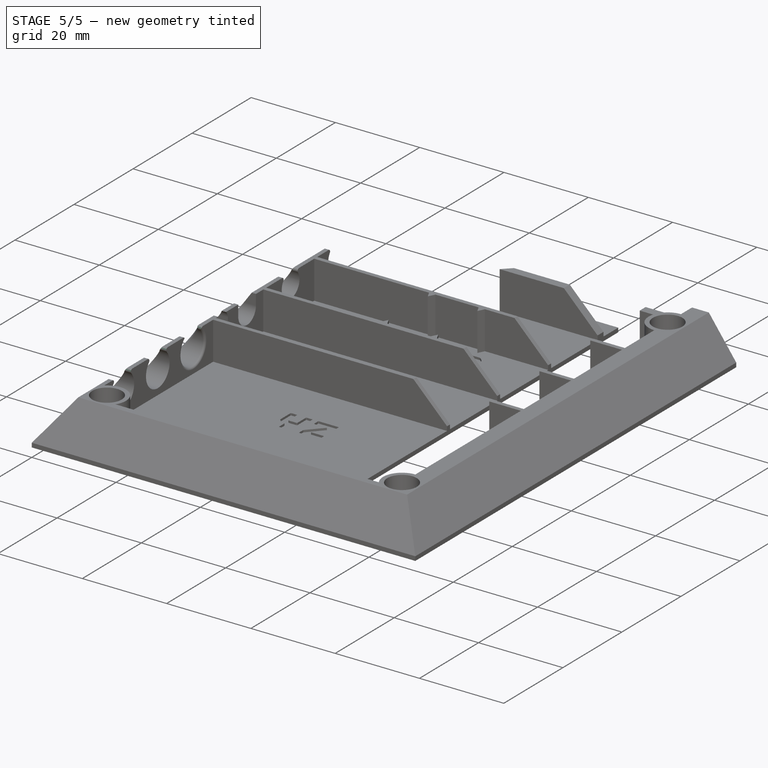
[diagram: stage 5 of 5 — iso view after this stage's code; geometry added in this stage tinted green]
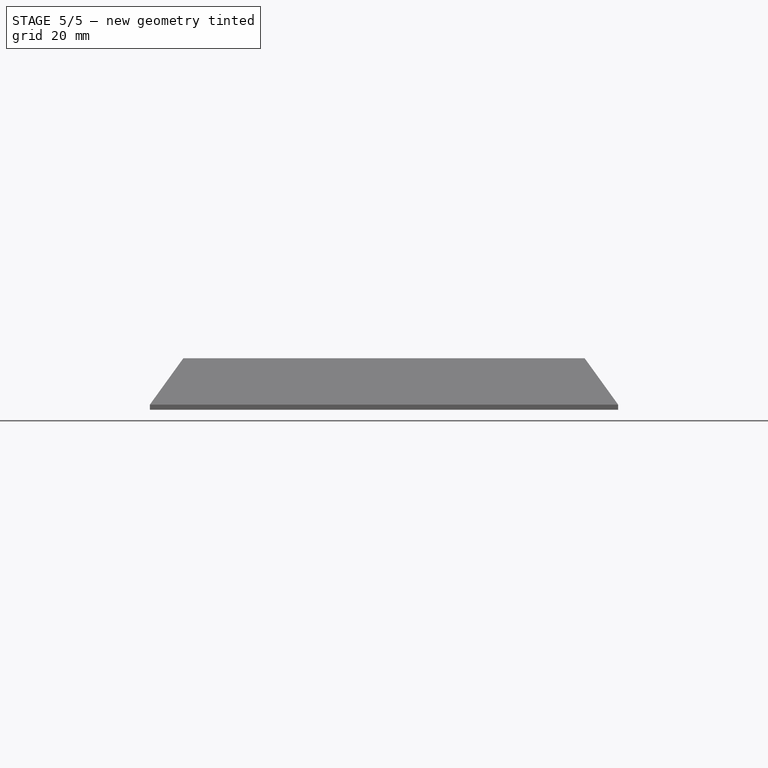
[diagram: stage 5 of 5 — front view after this stage's code; geometry added in this stage tinted green]
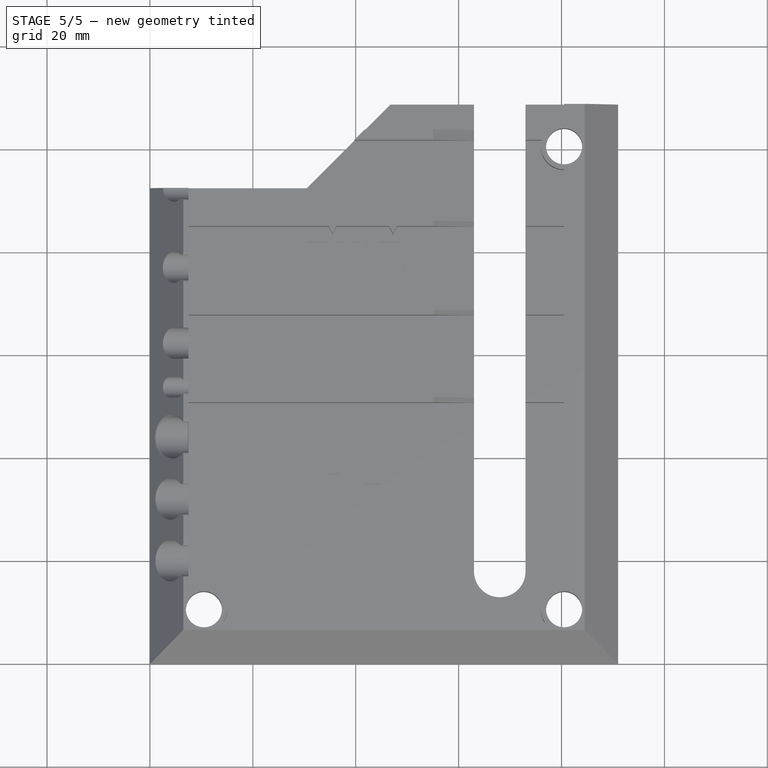
[diagram: stage 5 of 5 — top view after this stage's code; geometry added in this stage tinted green]
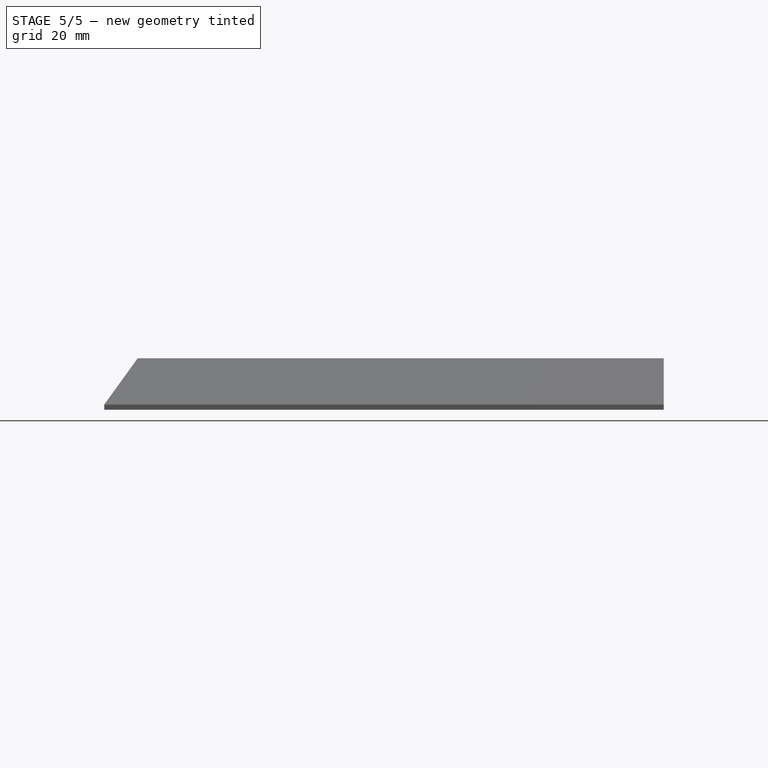
[diagram: stage 5 of 5 — right view after this stage's code; geometry added in this stage tinted green]
FEATURE [PartDesign::Pocket] Pocket010
  BaseFeature = -> Pocket009
  Length = 0.25
  Length2 = 100
  Profile = -> Sketch007
  Refine = true
  Type = 0
FEATURE [PartDesign::Pocket] Pocket011
  BaseFeature = -> Pocket010
  Length = 5
  Length2 = 100
  Profile = -> Sketch009
  Refine = true
  Type = 1
FEATURE [PartDesign::Fillet] Fillet
  Base = -> Pocket011 [Edge414,Edge181,Edge418,Edge419,Face72,Edge424,Edge445,Edge454,Edge411]
  BaseFeature = -> Pocket011
  Radius = 0.5
FEATURE [PartDesign::Body] Body
  Group = -> [Sketch,Pad,Sketch001,Sketch002,Pocket,Pocket001,Sketch003,Pocket002,Sketch004,Sketch005,Sketch006,ShapeString001,ShapeString004,ShapeString002,ShapeString,ShapeString003,Sketch007,Pocket003,Pad001,Pocket004,Sketch009,Pocket005,Pocket006,Pocket007,Pocket008,Pocket009,Pocket010,Pocket011,Fillet]
  Origin = -> Origin
  Tip = -> Fillet
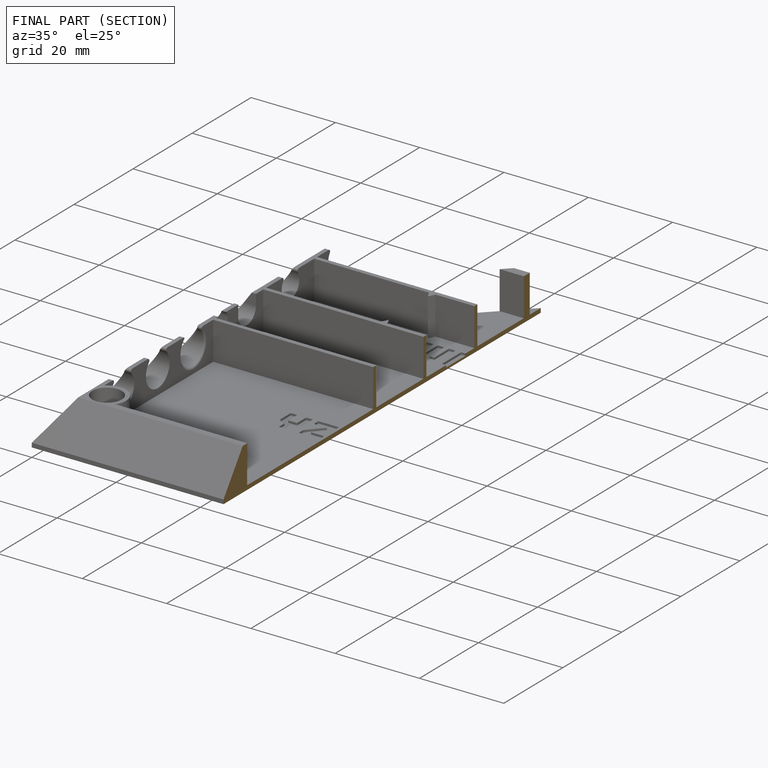
[diagram: finished part — half-section view (interior)]
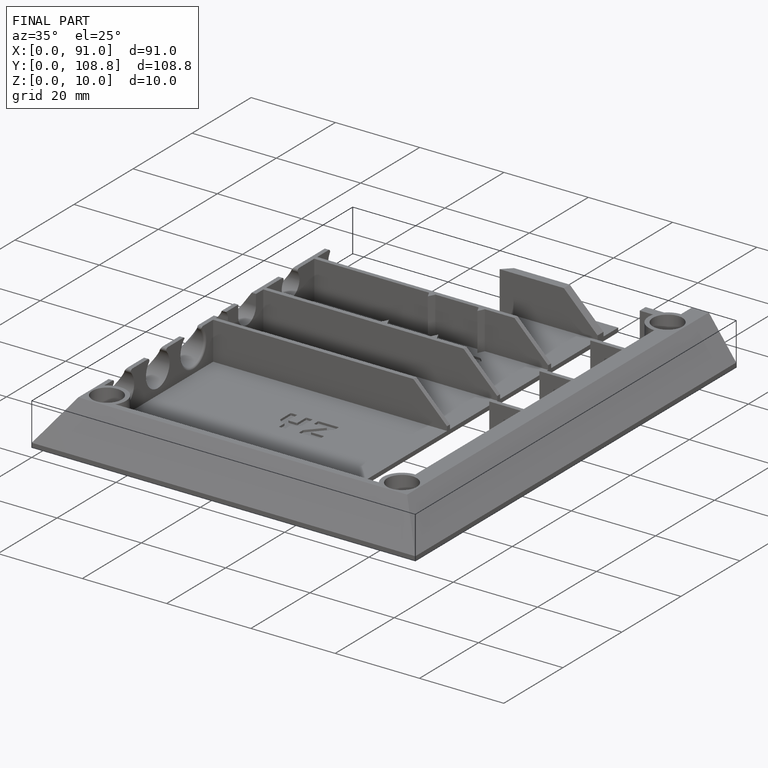
[diagram: finished part — iso view with bounding-box wireframe]
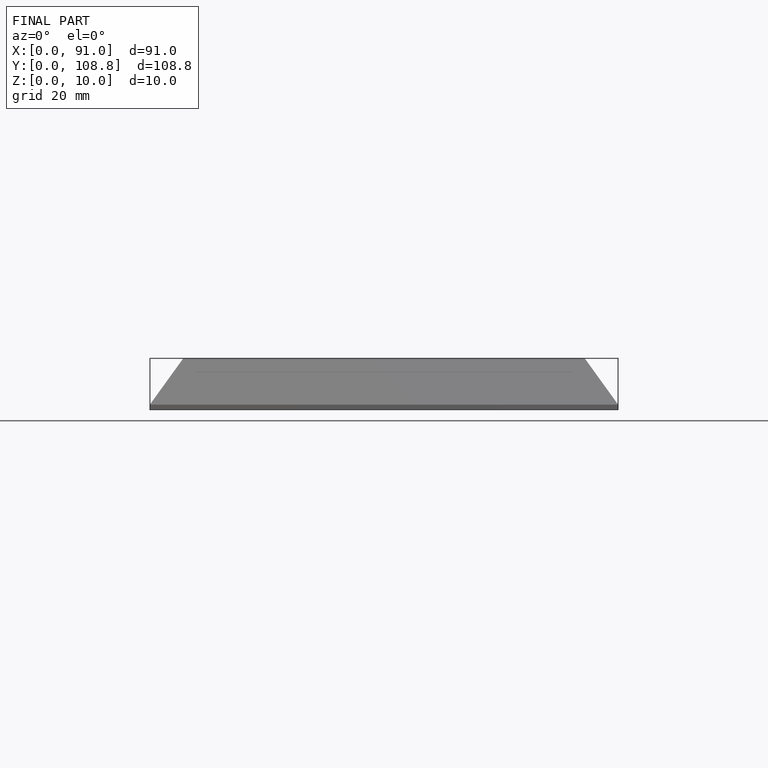
[diagram: finished part — front view with bounding-box wireframe]
